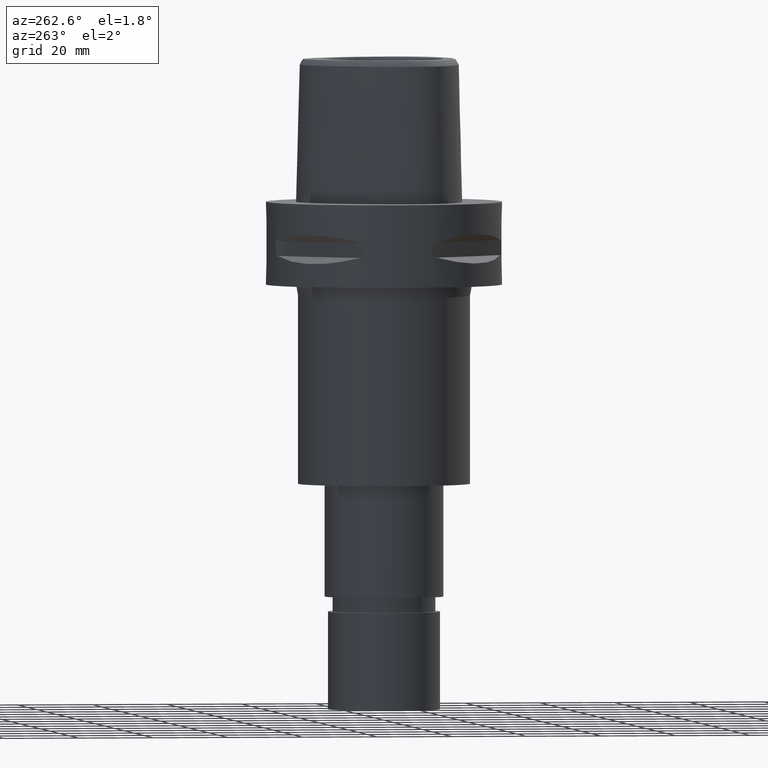
[diagram: clean part render]
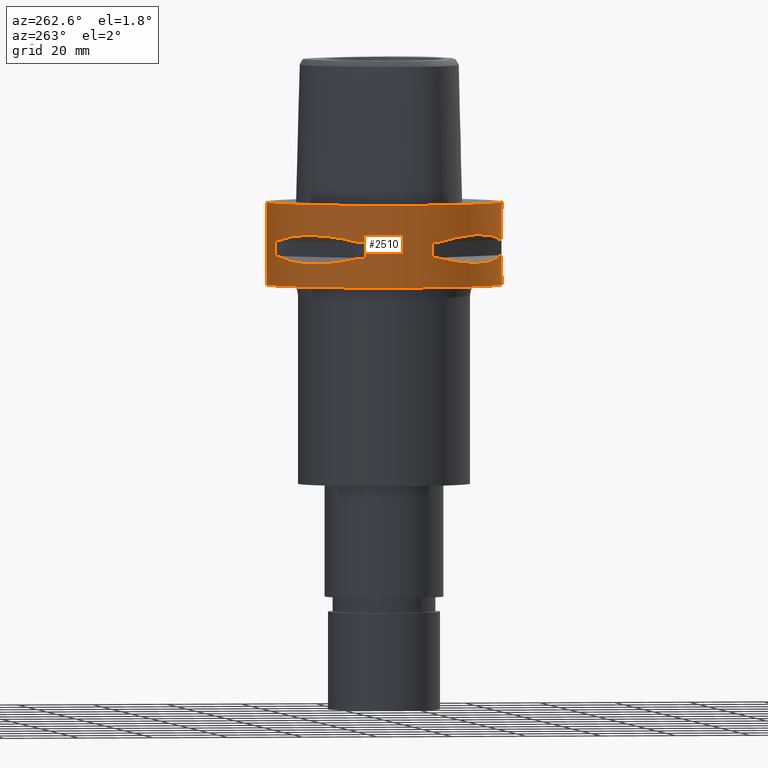
[diagram: same view with one face highlighted and labeled with its STEP entity id]
A machine part, auxiliary view. The second image highlights one B-rep face of the part: STEP entity #2510.
In plain terms, the highlighted cylindrical surface (partial cylindrical patch) has radius 31.5 mm, axis along (0, 0, -1).
Its self-contained STEP definition (entity closure, byte-faithful):
#280=CARTESIAN_POINT('',(0.E0,1.307310458090E-14,0.E0));
#281=DIRECTION('',(0.E0,0.E0,-1.E0));
#282=DIRECTION('',(0.E0,-1.E0,0.E0));
#283=AXIS2_PLACEMENT_3D('',#280,#281,#282);
#378=DIRECTION('',(0.E0,0.E0,-1.E0));
#379=VECTOR('',#378,2.2E1);
#380=CARTESIAN_POINT('',(0.E0,-3.15E1,0.E0));
#381=LINE('',#380,#379);
#385=DIRECTION('',(0.E0,0.E0,-1.E0));
#386=VECTOR('',#385,4.1E0);
#387=CARTESIAN_POINT('',(-8.981198972018E0,3.019251670572E1,-9.95E0));
#388=LINE('',#387,#386);
#392=CARTESIAN_POINT('',(-1.044775724750E1,2.971690375018E1,-1.405E1));
#393=CARTESIAN_POINT('',(-1.282388988809E1,2.888151197365E1,-1.467900482380E1));
#394=CARTESIAN_POINT('',(-1.711282138769E1,2.674739463903E1,-1.555870402292E1));
#395=CARTESIAN_POINT('',(-2.244574140438E1,2.244574140438E1,-1.597971692370E1));
#396=CARTESIAN_POINT('',(-2.674739463903E1,1.711282138769E1,-1.555870402292E1));
#397=CARTESIAN_POINT('',(-2.888151197365E1,1.282388988809E1,-1.467900482380E1));
#398=CARTESIAN_POINT('',(-2.971690375018E1,1.044775724750E1,-1.405E1));
#403=DIRECTION('',(0.E0,0.E0,1.E0));
#404=VECTOR('',#403,4.1E0);
#405=CARTESIAN_POINT('',(-3.019251670572E1,8.981198972018E0,-1.405E1));
#406=LINE('',#405,#404);
#410=DIRECTION('',(0.E0,0.E0,-1.E0));
#411=VECTOR('',#410,4.1E0);
#412=CARTESIAN_POINT('',(-3.019251670572E1,-8.981198972018E0,-9.95E0));
#413=LINE('',#412,#411);
#417=CARTESIAN_POINT('',(-2.971690375018E1,-1.044775724750E1,-1.405E1));
#418=CARTESIAN_POINT('',(-2.888151197365E1,-1.282388988809E1,
-1.467900482380E1));
#419=CARTESIAN_POINT('',(-2.674739463903E1,-1.711282138769E1,
-1.555870402292E1));
#420=CARTESIAN_POINT('',(-2.244574140438E1,-2.244574140438E1,
-1.597971692370E1));
#421=CARTESIAN_POINT('',(-1.711282138769E1,-2.674739463903E1,
-1.555870402292E1));
#422=CARTESIAN_POINT('',(-1.282388988809E1,-2.888151197365E1,
-1.467900482380E1));
#423=CARTESIAN_POINT('',(-1.044775724750E1,-2.971690375018E1,-1.405E1));
#428=DIRECTION('',(0.E0,0.E0,1.E0));
#429=VECTOR('',#428,4.1E0);
#430=CARTESIAN_POINT('',(-8.981198972018E0,-3.019251670572E1,-1.405E1));
#431=LINE('',#430,#429);
#435=DIRECTION('',(0.E0,0.E0,-1.E0));
#436=VECTOR('',#435,2.2E1);
#437=CARTESIAN_POINT('',(0.E0,3.15E1,0.E0));
#438=LINE('',#437,#436);
#492=CARTESIAN_POINT('',(0.E0,1.307310458090E-14,-2.2E1));
#493=DIRECTION('',(0.E0,0.E0,1.E0));
#494=DIRECTION('',(0.E0,1.E0,0.E0));
#495=AXIS2_PLACEMENT_3D('',#492,#493,#494);
#1004=CARTESIAN_POINT('',(-1.044775724750E1,2.971690375018E1,
-9.949999999999E0));
#1005=CARTESIAN_POINT('',(-1.282388988809E1,2.888151197365E1,
-9.320995176198E0));
#1006=CARTESIAN_POINT('',(-1.711282138769E1,2.674739463903E1,
-8.441295977074E0));
#1007=CARTESIAN_POINT('',(-2.244574140438E1,2.244574140438E1,
-8.020283076294E0));
#1008=CARTESIAN_POINT('',(-2.674739463903E1,1.711282138769E1,
-8.441295977074E0));
#1009=CARTESIAN_POINT('',(-2.888151197365E1,1.282388988809E1,
-9.320995176198E0));
#1010=CARTESIAN_POINT('',(-2.971690375018E1,1.044775724750E1,
-9.949999999999E0));
#1015=CARTESIAN_POINT('',(0.E0,1.307310458090E-14,-9.95E0));
#1016=DIRECTION('',(0.E0,0.E0,1.E0));
#1017=DIRECTION('',(-9.433937698469E-1,3.316748332541E-1,0.E0));
#1018=AXIS2_PLACEMENT_3D('',#1015,#1016,#1017);
#1023=CARTESIAN_POINT('',(0.E0,1.307310458090E-14,-9.95E0));
#1024=DIRECTION('',(0.E0,0.E0,1.E0));
#1025=DIRECTION('',(-2.851174276832E-1,9.584925938323E-1,0.E0));
#1026=AXIS2_PLACEMENT_3D('',#1023,#1024,#1025);
#1045=CARTESIAN_POINT('',(0.E0,1.307310458090E-14,-1.405E1));
#1046=DIRECTION('',(0.E0,0.E0,-1.E0));
#1047=DIRECTION('',(-9.584925938323E-1,2.851174276832E-1,0.E0));
#1048=AXIS2_PLACEMENT_3D('',#1045,#1046,#1047);
#1053=CARTESIAN_POINT('',(0.E0,1.307310458090E-14,-1.405E1));
#1054=DIRECTION('',(0.E0,0.E0,-1.E0));
#1055=DIRECTION('',(-3.316748332541E-1,9.433937698469E-1,0.E0));
#1056=AXIS2_PLACEMENT_3D('',#1053,#1054,#1055);
#1075=CARTESIAN_POINT('',(-2.971690375018E1,-1.044775724750E1,
-9.949999999999E0));
#1076=CARTESIAN_POINT('',(-2.888151197365E1,-1.282388988809E1,
-9.320995176198E0));
#1077=CARTESIAN_POINT('',(-2.674739463903E1,-1.711282138769E1,
-8.441295977074E0));
#1078=CARTESIAN_POINT('',(-2.244574140438E1,-2.244574140438E1,
-8.020283076294E0));
#1079=CARTESIAN_POINT('',(-1.711282138769E1,-2.674739463903E1,
-8.441295977074E0));
#1080=CARTESIAN_POINT('',(-1.282388988809E1,-2.888151197365E1,
-9.320995176198E0));
#1081=CARTESIAN_POINT('',(-1.044775724750E1,-2.971690375018E1,
-9.949999999999E0));
#1086=CARTESIAN_POINT('',(0.E0,1.307310458090E-14,-9.95E0));
#1087=DIRECTION('',(0.E0,0.E0,1.E0));
#1088=DIRECTION('',(-3.316748332541E-1,-9.433937698469E-1,0.E0));
#1089=AXIS2_PLACEMENT_3D('',#1086,#1087,#1088);
#1094=CARTESIAN_POINT('',(0.E0,1.307310458090E-14,-9.95E0));
#1095=DIRECTION('',(0.E0,0.E0,1.E0));
#1096=DIRECTION('',(-9.584925938323E-1,-2.851174276832E-1,0.E0));
#1097=AXIS2_PLACEMENT_3D('',#1094,#1095,#1096);
#1116=CARTESIAN_POINT('',(0.E0,1.307310458090E-14,-1.405E1));
#1117=DIRECTION('',(0.E0,0.E0,-1.E0));
#1118=DIRECTION('',(-2.851174276832E-1,-9.584925938323E-1,0.E0));
#1119=AXIS2_PLACEMENT_3D('',#1116,#1117,#1118);
#1124=CARTESIAN_POINT('',(0.E0,1.307310458090E-14,-1.405E1));
#1125=DIRECTION('',(0.E0,0.E0,-1.E0));
#1126=DIRECTION('',(-9.433937698469E-1,-3.316748332541E-1,0.E0));
#1127=AXIS2_PLACEMENT_3D('',#1124,#1125,#1126);
#1606=CARTESIAN_POINT('',(0.E0,-3.15E1,0.E0));
#1607=CARTESIAN_POINT('',(0.E0,3.15E1,0.E0));
#1608=VERTEX_POINT('',#1606);
#1609=VERTEX_POINT('',#1607);
#1610=CARTESIAN_POINT('',(0.E0,3.15E1,-2.2E1));
#1611=VERTEX_POINT('',#1610);
#1612=CARTESIAN_POINT('',(0.E0,-3.15E1,-2.2E1));
#1613=VERTEX_POINT('',#1612);
#1614=VERTEX_POINT('',#1004);
#1615=VERTEX_POINT('',#1010);
#1616=CARTESIAN_POINT('',(-8.981198972020E0,3.019251670572E1,-9.95E0));
#1617=VERTEX_POINT('',#1616);
#1618=CARTESIAN_POINT('',(-8.981198972018E0,3.019251670572E1,-1.405E1));
#1619=VERTEX_POINT('',#1618);
#1620=CARTESIAN_POINT('',(-1.044775724750E1,2.971690375018E1,-1.405E1));
#1621=VERTEX_POINT('',#1620);
#1622=VERTEX_POINT('',#398);
#1623=CARTESIAN_POINT('',(-3.019251670572E1,8.981198972020E0,-1.405E1));
#1624=VERTEX_POINT('',#1623);
#1625=CARTESIAN_POINT('',(-3.019251670572E1,8.981198972018E0,-9.95E0));
#1626=VERTEX_POINT('',#1625);
#1627=VERTEX_POINT('',#1075);
#1628=VERTEX_POINT('',#1081);
#1629=CARTESIAN_POINT('',(-3.019251670572E1,-8.981198972020E0,-9.95E0));
#1630=VERTEX_POINT('',#1629);
#1631=CARTESIAN_POINT('',(-3.019251670572E1,-8.981198972018E0,-1.405E1));
#1632=VERTEX_POINT('',#1631);
#1633=CARTESIAN_POINT('',(-2.971690375018E1,-1.044775724750E1,-1.405E1));
#1634=VERTEX_POINT('',#1633);
#1635=VERTEX_POINT('',#423);
#1636=CARTESIAN_POINT('',(-8.981198972020E0,-3.019251670572E1,-1.405E1));
#1637=VERTEX_POINT('',#1636);
#1638=CARTESIAN_POINT('',(-8.981198972018E0,-3.019251670572E1,-9.95E0));
#1639=VERTEX_POINT('',#1638);
#2460=CARTESIAN_POINT('',(0.E0,1.307310458090E-14,6.75E0));
#2461=DIRECTION('',(0.E0,0.E0,-1.E0));
#2462=DIRECTION('',(0.E0,-1.E0,0.E0));
#2463=AXIS2_PLACEMENT_3D('',#2460,#2461,#2462);
#2464=CYLINDRICAL_SURFACE('',#2463,3.15E1);
#2466=ORIENTED_EDGE('',*,*,#2465,.F.);
#2467=ORIENTED_EDGE('',*,*,#2448,.F.);
#2469=ORIENTED_EDGE('',*,*,#2468,.T.);
#2471=ORIENTED_EDGE('',*,*,#2470,.F.);
#2472=EDGE_LOOP('',(#2466,#2467,#2469,#2471));
#2473=FACE_OUTER_BOUND('',#2472,.F.);
#2475=ORIENTED_EDGE('',*,*,#2474,.F.);
#2477=ORIENTED_EDGE('',*,*,#2476,.F.);
#2479=ORIENTED_EDGE('',*,*,#2478,.T.);
#2481=ORIENTED_EDGE('',*,*,#2480,.F.);
#2483=ORIENTED_EDGE('',*,*,#2482,.T.);
#2485=ORIENTED_EDGE('',*,*,#2484,.F.);
#2487=ORIENTED_EDGE('',*,*,#2486,.T.);
#2489=ORIENTED_EDGE('',*,*,#2488,.F.);
#2490=EDGE_LOOP('',(#2475,#2477,#2479,#2481,#2483,#2485,#2487,#2489));
#2491=FACE_BOUND('',#2490,.F.);
#2493=ORIENTED_EDGE('',*,*,#2492,.F.);
#2495=ORIENTED_EDGE('',*,*,#2494,.F.);
#2497=ORIENTED_EDGE('',*,*,#2496,.T.);
#2499=ORIENTED_EDGE('',*,*,#2498,.F.);
#2501=ORIENTED_EDGE('',*,*,#2500,.T.);
#2503=ORIENTED_EDGE('',*,*,#2502,.F.);
#2505=ORIENTED_EDGE('',*,*,#2504,.T.);
#2507=ORIENTED_EDGE('',*,*,#2506,.F.);
#2508=EDGE_LOOP('',(#2493,#2495,#2497,#2499,#2501,#2503,#2505,#2507));
#2509=FACE_BOUND('',#2508,.F.);
#284=CIRCLE('',#283,3.15E1);
#399=B_SPLINE_CURVE_WITH_KNOTS('',3,(#392,#393,#394,#395,#396,#397,#398),
.UNSPECIFIED.,.F.,.F.,(4,1,1,1,4),(0.E0,2.5E-1,5.E-1,7.5E-1,1.E0),
.UNSPECIFIED.);
#424=B_SPLINE_CURVE_WITH_KNOTS('',3,(#417,#418,#419,#420,#421,#422,#423),
.UNSPECIFIED.,.F.,.F.,(4,1,1,1,4),(0.E0,2.5E-1,5.E-1,7.5E-1,1.E0),
.UNSPECIFIED.);
#496=CIRCLE('',#495,3.15E1);
#1011=B_SPLINE_CURVE_WITH_KNOTS('',3,(#1004,#1005,#1006,#1007,#1008,#1009,
#1010),.UNSPECIFIED.,.F.,.F.,(4,1,1,1,4),(0.E0,2.5E-1,5.E-1,7.5E-1,1.E0),
.UNSPECIFIED.);
#1019=CIRCLE('',#1018,3.15E1);
#1027=CIRCLE('',#1026,3.15E1);
#1049=CIRCLE('',#1048,3.15E1);
#1057=CIRCLE('',#1056,3.15E1);
#1082=B_SPLINE_CURVE_WITH_KNOTS('',3,(#1075,#1076,#1077,#1078,#1079,#1080,
#1081),.UNSPECIFIED.,.F.,.F.,(4,1,1,1,4),(0.E0,2.5E-1,5.E-1,7.5E-1,1.E0),
.UNSPECIFIED.);
#1090=CIRCLE('',#1089,3.15E1);
#1098=CIRCLE('',#1097,3.15E1);
#1120=CIRCLE('',#1119,3.15E1);
#1128=CIRCLE('',#1127,3.15E1);
#2448=EDGE_CURVE('',#1608,#1609,#284,.T.);
#2465=EDGE_CURVE('',#1609,#1611,#438,.T.);
#2468=EDGE_CURVE('',#1608,#1613,#381,.T.);
#2470=EDGE_CURVE('',#1611,#1613,#496,.T.);
#2474=EDGE_CURVE('',#1614,#1615,#1011,.T.);
#2476=EDGE_CURVE('',#1617,#1614,#1027,.T.);
#2478=EDGE_CURVE('',#1617,#1619,#388,.T.);
#2480=EDGE_CURVE('',#1621,#1619,#1057,.T.);
#2482=EDGE_CURVE('',#1621,#1622,#399,.T.);
#2484=EDGE_CURVE('',#1624,#1622,#1049,.T.);
#2486=EDGE_CURVE('',#1624,#1626,#406,.T.);
#2488=EDGE_CURVE('',#1615,#1626,#1019,.T.);
#2492=EDGE_CURVE('',#1627,#1628,#1082,.T.);
#2494=EDGE_CURVE('',#1630,#1627,#1098,.T.);
#2496=EDGE_CURVE('',#1630,#1632,#413,.T.);
#2498=EDGE_CURVE('',#1634,#1632,#1128,.T.);
#2500=EDGE_CURVE('',#1634,#1635,#424,.T.);
#2502=EDGE_CURVE('',#1637,#1635,#1120,.T.);
#2504=EDGE_CURVE('',#1637,#1639,#431,.T.);
#2506=EDGE_CURVE('',#1628,#1639,#1090,.T.);
#2510=ADVANCED_FACE('',(#2473,#2491,#2509),#2464,.T.);